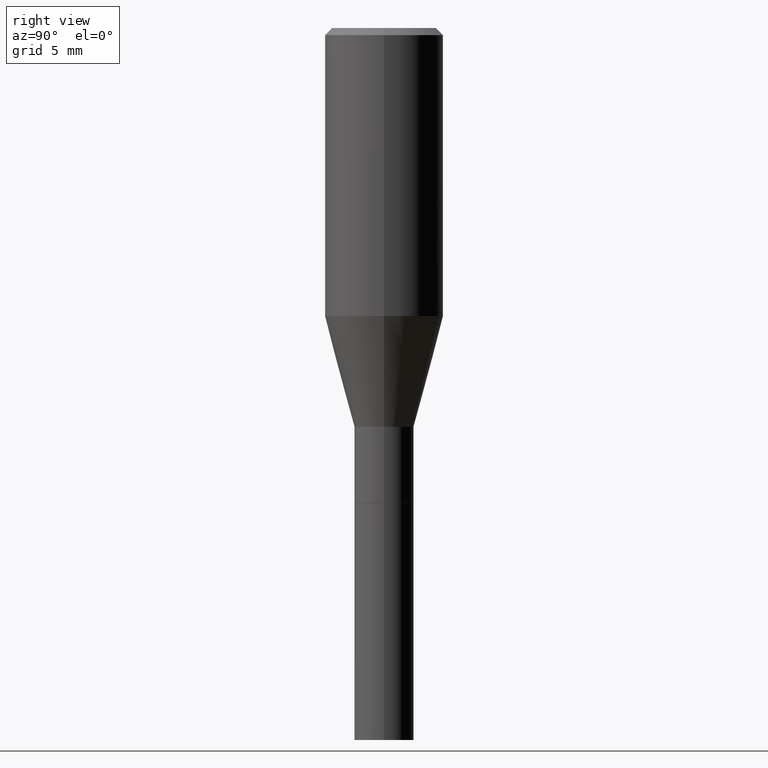
[diagram: clean part render]
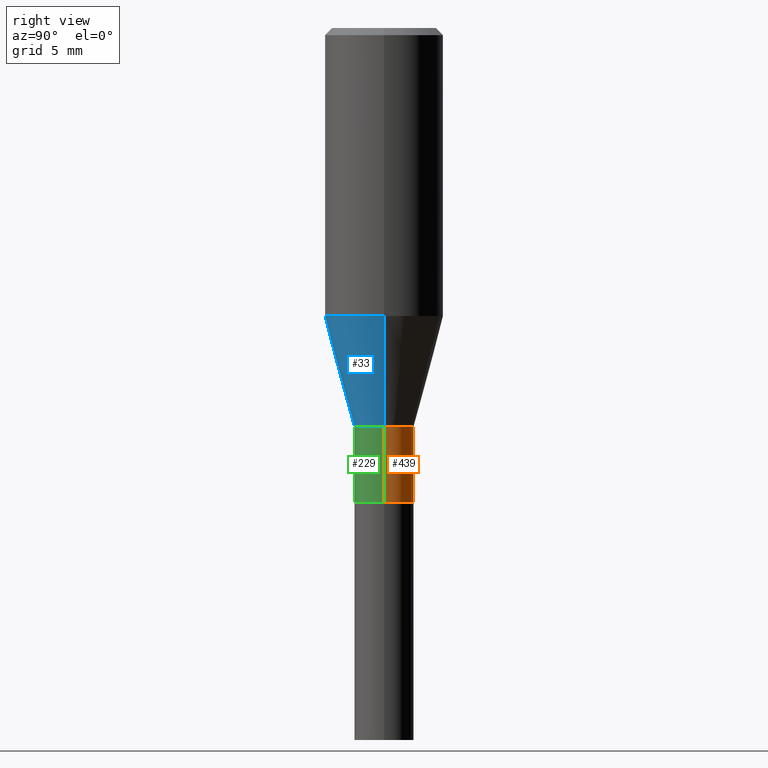
[diagram: same view with three faces highlighted in distinct colors, each labeled with its STEP entity id]
A machine part, right view with three faces highlighted in distinct colors.
Their STEP definitions:

[orange] entity #439 — the highlighted cylindrical surface (edge-blend (fillet) strip) has radius 1.5875 mm, axis along (-0, 0, 1).
#1 = VECTOR ( 'NONE', #235, 39.37007874015748143 ) ;
#3 = ORIENTED_EDGE ( 'NONE', *, *, #60, .F. ) ;
#26 = DIRECTION ( 'NONE',  ( 1.000000000000000000, -6.982962677686266711E-15, 4.876176775795935232E-29 ) ) ;
#29 = CIRCLE ( 'NONE', #96, 0.06250000000000002776 ) ;
#45 = DIRECTION ( 'NONE',  ( -2.445468806185136877E-29, 3.491481338843145188E-15, 1.000000000000000000 ) ) ;
#60 = EDGE_CURVE ( 'NONE', #315, #435, #287, .T. ) ;
#66 = DIRECTION ( 'NONE',  ( -2.445468806185136597E-29, 3.491481338843145583E-15, 1.000000000000000000 ) ) ;
#67 = ORIENTED_EDGE ( 'NONE', *, *, #175, .T. ) ;
#68 = EDGE_LOOP ( 'NONE', ( #67, #253, #382, #3 ) ) ;
#75 = VERTEX_POINT ( 'NONE', #225 ) ;
#82 = EDGE_CURVE ( 'NONE', #435, #285, #29, .T. ) ;
#90 = EDGE_CURVE ( 'NONE', #75, #285, #156, .T. ) ;
#95 = CARTESIAN_POINT ( 'NONE',  ( -0.06250000000000005551, 4.440892098500630106E-16, -3.074334431409318916E-30 ) ) ;
#96 = AXIS2_PLACEMENT_3D ( 'NONE', #194, #297, #404 ) ;
#136 = CARTESIAN_POINT ( 'NONE',  ( 0.000000000000000000, 0.000000000000000000, 0.000000000000000000 ) ) ;
#156 = LINE ( 'NONE', #95, #1 ) ;
#175 = EDGE_CURVE ( 'NONE', #315, #75, #393, .T. ) ;
#194 = CARTESIAN_POINT ( 'NONE',  ( 2.054193797195514674E-29, -2.932844324628242353E-15, -0.8400000000000000799 ) ) ;
#209 = VECTOR ( 'NONE', #45, 39.37007874015748143 ) ;
#225 = CARTESIAN_POINT ( 'NONE',  ( -0.06250000000000005551, -3.045646388323661463E-15, -0.9995000000000000551 ) ) ;
#235 = DIRECTION ( 'NONE',  ( -2.445468806185136877E-29, 3.491481338843145188E-15, 1.000000000000000000 ) ) ;
#253 = ORIENTED_EDGE ( 'NONE', *, *, #90, .T. ) ;
#259 = CARTESIAN_POINT ( 'NONE',  ( 0.06250000000000005551, -4.364351673553920638E-16, 3.047610484872462323E-30 ) ) ;
#262 = CARTESIAN_POINT ( 'NONE',  ( 0.06250000000000005551, -3.926170765529116932E-15, -0.9995000000000000551 ) ) ;
#268 = FACE_OUTER_BOUND ( 'NONE', #68, .T. ) ;
#285 = VERTEX_POINT ( 'NONE', #431 ) ;
#287 = LINE ( 'NONE', #259, #209 ) ;
#297 = DIRECTION ( 'NONE',  ( -2.445468806185136597E-29, 3.491481338843145583E-15, 1.000000000000000000 ) ) ;
#307 = AXIS2_PLACEMENT_3D ( 'NONE', #136, #374, #26 ) ;
#315 = VERTEX_POINT ( 'NONE', #262 ) ;
#374 = DIRECTION ( 'NONE',  ( -2.445468806185136597E-29, 3.491481338843145583E-15, 1.000000000000000000 ) ) ;
#382 = ORIENTED_EDGE ( 'NONE', *, *, #82, .F. ) ;
#393 = CIRCLE ( 'NONE', #444, 0.06250000000000005551 ) ;
#404 = DIRECTION ( 'NONE',  ( 1.000000000000000000, -6.982962677686267499E-15, 0.000000000000000000 ) ) ;
#418 = CARTESIAN_POINT ( 'NONE',  ( 2.444246071782044356E-29, -3.489735598173724079E-15, -0.9995000000000000551 ) ) ;
#423 = DIRECTION ( 'NONE',  ( 1.000000000000000000, -6.982962677686264344E-15, 0.000000000000000000 ) ) ;
#431 = CARTESIAN_POINT ( 'NONE',  ( -0.06250000000000002776, -1.859510955158110940E-15, -0.8400000000000000799 ) ) ;
#435 = VERTEX_POINT ( 'NONE', #454 ) ;
#439 = ADVANCED_FACE ( 'NONE', ( #268 ), #457, .T. ) ;
#444 = AXIS2_PLACEMENT_3D ( 'NONE', #418, #66, #423 ) ;
#454 = CARTESIAN_POINT ( 'NONE',  ( 0.06250000000000002776, -3.369279491983634416E-15, -0.8400000000000000799 ) ) ;
#457 = CYLINDRICAL_SURFACE ( 'NONE', #307, 0.06250000000000005551 ) ;

[blue] entity #33 — the highlighted conical surface has half-angle 15 deg.
#32 = AXIS2_PLACEMENT_3D ( 'NONE', #270, #176, #372 ) ;
#33 = ADVANCED_FACE ( 'NONE', ( #438 ), #220, .T. ) ;
#71 = CIRCLE ( 'NONE', #32, 0.06250000000000002776 ) ;
#78 = ORIENTED_EDGE ( 'NONE', *, *, #387, .F. ) ;
#86 = AXIS2_PLACEMENT_3D ( 'NONE', #119, #400, #87 ) ;
#87 = DIRECTION ( 'NONE',  ( 1.000000000000000000, -6.982962677686267499E-15, 0.000000000000000000 ) ) ;
#88 = VECTOR ( 'NONE', #316, 39.37007874015748854 ) ;
#89 = VECTOR ( 'NONE', #345, 39.37007874015748854 ) ;
#109 = DIRECTION ( 'NONE',  ( 1.000000000000000000, -6.982962677686266711E-15, 0.000000000000000000 ) ) ;
#119 = CARTESIAN_POINT ( 'NONE',  ( 2.054193797195514674E-29, -2.932844324628242353E-15, -0.8400000000000000799 ) ) ;
#139 = CIRCLE ( 'NONE', #343, 0.1250000000000000000 ) ;
#149 = ORIENTED_EDGE ( 'NONE', *, *, #179, .F. ) ;
#157 = EDGE_CURVE ( 'NONE', #435, #414, #267, .T. ) ;
#163 = LINE ( 'NONE', #338, #89 ) ;
#176 = DIRECTION ( 'NONE',  ( -2.445468806185136597E-29, 3.491481338843145583E-15, 1.000000000000000000 ) ) ;
#179 = EDGE_CURVE ( 'NONE', #321, #414, #139, .T. ) ;
#207 = CARTESIAN_POINT ( 'NONE',  ( 0.1250000000000000000, -2.991315549948951109E-15, -0.6067468245269458382 ) ) ;
#214 = CARTESIAN_POINT ( 'NONE',  ( 1.483780432632532673E-29, -2.118445215238167770E-15, -0.6067468245269458382 ) ) ;
#216 = DIRECTION ( 'NONE',  ( -2.445468806185136597E-29, 3.491481338843145583E-15, 1.000000000000000000 ) ) ;
#220 = CONICAL_SURFACE ( 'NONE', #86, 0.06250000000000002776, 0.2617993877991499074 ) ;
#236 = CARTESIAN_POINT ( 'NONE',  ( -0.1250000000000000000, -1.230266795538042735E-15, -0.6067468245269458382 ) ) ;
#257 = EDGE_LOOP ( 'NONE', ( #78, #391, #330, #149 ) ) ;
#267 = LINE ( 'NONE', #274, #88 ) ;
#270 = CARTESIAN_POINT ( 'NONE',  ( 2.054193797195514674E-29, -2.932844324628242353E-15, -0.8400000000000000799 ) ) ;
#274 = CARTESIAN_POINT ( 'NONE',  ( 0.06250000000000002776, -3.369279491983634416E-15, -0.8400000000000000799 ) ) ;
#285 = VERTEX_POINT ( 'NONE', #431 ) ;
#316 = DIRECTION ( 'NONE',  ( 0.2588190451025211836, 1.565188264969622559E-15, 0.9659258262890679791 ) ) ;
#321 = VERTEX_POINT ( 'NONE', #236 ) ;
#330 = ORIENTED_EDGE ( 'NONE', *, *, #157, .T. ) ;
#338 = CARTESIAN_POINT ( 'NONE',  ( -0.06250000000000002776, -2.488755114778179736E-15, -0.8400000000000000799 ) ) ;
#343 = AXIS2_PLACEMENT_3D ( 'NONE', #214, #216, #109 ) ;
#345 = DIRECTION ( 'NONE',  ( -0.2588190451025211836, 5.211531920934547886E-15, 0.9659258262890679791 ) ) ;
#372 = DIRECTION ( 'NONE',  ( 1.000000000000000000, -6.982962677686267499E-15, 0.000000000000000000 ) ) ;
#387 = EDGE_CURVE ( 'NONE', #285, #321, #163, .T. ) ;
#391 = ORIENTED_EDGE ( 'NONE', *, *, #453, .T. ) ;
#400 = DIRECTION ( 'NONE',  ( -2.445468806185136597E-29, 3.491481338843145583E-15, 1.000000000000000000 ) ) ;
#414 = VERTEX_POINT ( 'NONE', #207 ) ;
#431 = CARTESIAN_POINT ( 'NONE',  ( -0.06250000000000002776, -1.859510955158110940E-15, -0.8400000000000000799 ) ) ;
#435 = VERTEX_POINT ( 'NONE', #454 ) ;
#438 = FACE_OUTER_BOUND ( 'NONE', #257, .T. ) ;
#453 = EDGE_CURVE ( 'NONE', #285, #435, #71, .T. ) ;
#454 = CARTESIAN_POINT ( 'NONE',  ( 0.06250000000000002776, -3.369279491983634416E-15, -0.8400000000000000799 ) ) ;

[green] entity #229 — the highlighted cylindrical surface (edge-blend (fillet) strip) has radius 1.5875 mm, axis along (-0, 0, 1).
#1 = VECTOR ( 'NONE', #235, 39.37007874015748143 ) ;
#28 = FACE_OUTER_BOUND ( 'NONE', #385, .T. ) ;
#30 = DIRECTION ( 'NONE',  ( 1.000000000000000000, -6.982962677686266711E-15, 4.876176775795935232E-29 ) ) ;
#32 = AXIS2_PLACEMENT_3D ( 'NONE', #270, #176, #372 ) ;
#45 = DIRECTION ( 'NONE',  ( -2.445468806185136877E-29, 3.491481338843145188E-15, 1.000000000000000000 ) ) ;
#60 = EDGE_CURVE ( 'NONE', #315, #435, #287, .T. ) ;
#64 = AXIS2_PLACEMENT_3D ( 'NONE', #182, #284, #30 ) ;
#71 = CIRCLE ( 'NONE', #32, 0.06250000000000002776 ) ;
#75 = VERTEX_POINT ( 'NONE', #225 ) ;
#90 = EDGE_CURVE ( 'NONE', #75, #285, #156, .T. ) ;
#95 = CARTESIAN_POINT ( 'NONE',  ( -0.06250000000000005551, 4.440892098500630106E-16, -3.074334431409318916E-30 ) ) ;
#117 = ORIENTED_EDGE ( 'NONE', *, *, #90, .F. ) ;
#156 = LINE ( 'NONE', #95, #1 ) ;
#167 = EDGE_CURVE ( 'NONE', #75, #315, #266, .T. ) ;
#176 = DIRECTION ( 'NONE',  ( -2.445468806185136597E-29, 3.491481338843145583E-15, 1.000000000000000000 ) ) ;
#182 = CARTESIAN_POINT ( 'NONE',  ( 0.000000000000000000, 0.000000000000000000, 0.000000000000000000 ) ) ;
#209 = VECTOR ( 'NONE', #45, 39.37007874015748143 ) ;
#223 = ORIENTED_EDGE ( 'NONE', *, *, #453, .F. ) ;
#225 = CARTESIAN_POINT ( 'NONE',  ( -0.06250000000000005551, -3.045646388323661463E-15, -0.9995000000000000551 ) ) ;
#229 = ADVANCED_FACE ( 'NONE', ( #28 ), #425, .T. ) ;
#235 = DIRECTION ( 'NONE',  ( -2.445468806185136877E-29, 3.491481338843145188E-15, 1.000000000000000000 ) ) ;
#244 = DIRECTION ( 'NONE',  ( 1.000000000000000000, -6.982962677686264344E-15, 0.000000000000000000 ) ) ;
#259 = CARTESIAN_POINT ( 'NONE',  ( 0.06250000000000005551, -4.364351673553920638E-16, 3.047610484872462323E-30 ) ) ;
#262 = CARTESIAN_POINT ( 'NONE',  ( 0.06250000000000005551, -3.926170765529116932E-15, -0.9995000000000000551 ) ) ;
#266 = CIRCLE ( 'NONE', #410, 0.06250000000000005551 ) ;
#270 = CARTESIAN_POINT ( 'NONE',  ( 2.054193797195514674E-29, -2.932844324628242353E-15, -0.8400000000000000799 ) ) ;
#279 = DIRECTION ( 'NONE',  ( -2.445468806185136597E-29, 3.491481338843145583E-15, 1.000000000000000000 ) ) ;
#284 = DIRECTION ( 'NONE',  ( -2.445468806185136597E-29, 3.491481338843145583E-15, 1.000000000000000000 ) ) ;
#285 = VERTEX_POINT ( 'NONE', #431 ) ;
#287 = LINE ( 'NONE', #259, #209 ) ;
#315 = VERTEX_POINT ( 'NONE', #262 ) ;
#372 = DIRECTION ( 'NONE',  ( 1.000000000000000000, -6.982962677686267499E-15, 0.000000000000000000 ) ) ;
#385 = EDGE_LOOP ( 'NONE', ( #117, #389, #395, #223 ) ) ;
#389 = ORIENTED_EDGE ( 'NONE', *, *, #167, .T. ) ;
#395 = ORIENTED_EDGE ( 'NONE', *, *, #60, .T. ) ;
#410 = AXIS2_PLACEMENT_3D ( 'NONE', #420, #279, #244 ) ;
#420 = CARTESIAN_POINT ( 'NONE',  ( 2.444246071782044356E-29, -3.489735598173724079E-15, -0.9995000000000000551 ) ) ;
#425 = CYLINDRICAL_SURFACE ( 'NONE', #64, 0.06250000000000005551 ) ;
#431 = CARTESIAN_POINT ( 'NONE',  ( -0.06250000000000002776, -1.859510955158110940E-15, -0.8400000000000000799 ) ) ;
#435 = VERTEX_POINT ( 'NONE', #454 ) ;
#453 = EDGE_CURVE ( 'NONE', #285, #435, #71, .T. ) ;
#454 = CARTESIAN_POINT ( 'NONE',  ( 0.06250000000000002776, -3.369279491983634416E-15, -0.8400000000000000799 ) ) ;